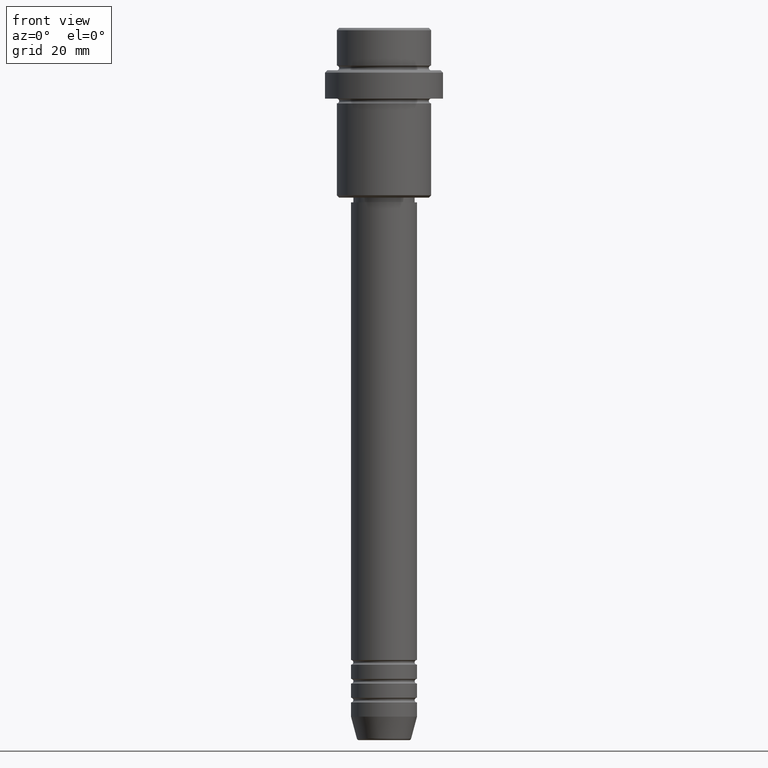
[diagram: clean part render]
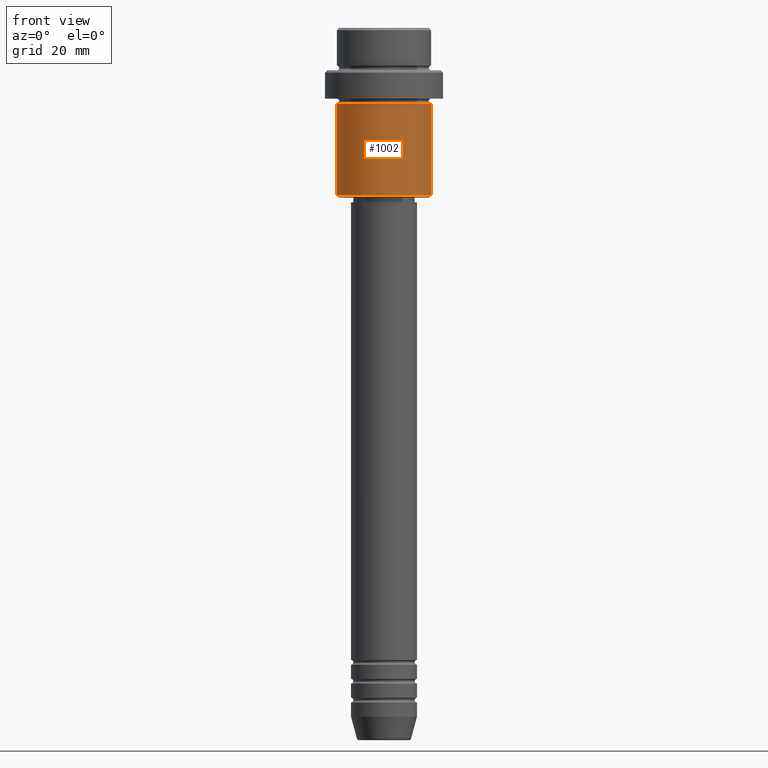
[diagram: same view with one face highlighted and labeled with its STEP entity id]
A machine part, front view. The second image highlights one B-rep face of the part: STEP entity #1002.
In plain terms, the highlighted cylindrical surface (partial cylindrical patch) has radius 10 mm, axis along (-0, -0, 1).
Its self-contained STEP definition (entity closure, byte-faithful):
#49 = LINE ( 'NONE', #816, #1339 ) ;
#78 = VERTEX_POINT ( 'NONE', #785 ) ;
#130 = CARTESIAN_POINT ( 'NONE',  ( 10.00000000000000000, 0.000000000000000000, -35.49999999999995737 ) ) ;
#138 = FACE_OUTER_BOUND ( 'NONE', #333, .T. ) ;
#195 = DIRECTION ( 'NONE',  ( -0.000000000000000000, -0.000000000000000000, 1.000000000000000000 ) ) ;
#276 = LINE ( 'NONE', #692, #716 ) ;
#333 = EDGE_LOOP ( 'NONE', ( #485, #599, #435, #347 ) ) ;
#347 = ORIENTED_EDGE ( 'NONE', *, *, #1142, .F. ) ;
#371 = DIRECTION ( 'NONE',  ( 1.000000000000000000, 0.000000000000000000, 0.000000000000000000 ) ) ;
#385 = CYLINDRICAL_SURFACE ( 'NONE', #540, 10.00000000000000000 ) ;
#421 = AXIS2_PLACEMENT_3D ( 'NONE', #1402, #1408, #943 ) ;
#435 = ORIENTED_EDGE ( 'NONE', *, *, #614, .T. ) ;
#468 = CIRCLE ( 'NONE', #1029, 10.00000000000000000 ) ;
#479 = DIRECTION ( 'NONE',  ( -0.000000000000000000, -0.000000000000000000, 1.000000000000000000 ) ) ;
#485 = ORIENTED_EDGE ( 'NONE', *, *, #980, .F. ) ;
#540 = AXIS2_PLACEMENT_3D ( 'NONE', #826, #479, #371 ) ;
#591 = DIRECTION ( 'NONE',  ( -0.000000000000000000, -0.000000000000000000, 1.000000000000000000 ) ) ;
#599 = ORIENTED_EDGE ( 'NONE', *, *, #731, .T. ) ;
#600 = DIRECTION ( 'NONE',  ( -0.000000000000000000, -0.000000000000000000, 1.000000000000000000 ) ) ;
#614 = EDGE_CURVE ( 'NONE', #1357, #78, #49, .T. ) ;
#623 = CARTESIAN_POINT ( 'NONE',  ( -10.00000000000000000, 1.224646799147353256E-15, -35.49999999999995737 ) ) ;
#633 = DIRECTION ( 'NONE',  ( -1.000000000000000000, 0.000000000000000000, 0.000000000000000000 ) ) ;
#692 = CARTESIAN_POINT ( 'NONE',  ( -10.00000000000000000, 1.224646799147353256E-15, 0.000000000000000000 ) ) ;
#716 = VECTOR ( 'NONE', #600, 1000.000000000000000 ) ;
#731 = EDGE_CURVE ( 'NONE', #1401, #1357, #468, .T. ) ;
#785 = CARTESIAN_POINT ( 'NONE',  ( 10.00000000000000000, 0.000000000000000000, -16.00000000000000000 ) ) ;
#816 = CARTESIAN_POINT ( 'NONE',  ( 10.00000000000000000, 0.000000000000000000, 0.000000000000000000 ) ) ;
#826 = CARTESIAN_POINT ( 'NONE',  ( 0.000000000000000000, 0.000000000000000000, 0.000000000000000000 ) ) ;
#856 = CARTESIAN_POINT ( 'NONE',  ( -10.00000000000000000, 1.224646799147353256E-15, -16.00000000000000000 ) ) ;
#943 = DIRECTION ( 'NONE',  ( 1.000000000000000000, 0.000000000000000000, 0.000000000000000000 ) ) ;
#980 = EDGE_CURVE ( 'NONE', #1401, #1145, #276, .T. ) ;
#984 = CIRCLE ( 'NONE', #421, 10.00000000000000000 ) ;
#1002 = ADVANCED_FACE ( 'NONE', ( #138 ), #385, .T. ) ;
#1029 = AXIS2_PLACEMENT_3D ( 'NONE', #1184, #195, #633 ) ;
#1142 = EDGE_CURVE ( 'NONE', #1145, #78, #984, .T. ) ;
#1145 = VERTEX_POINT ( 'NONE', #856 ) ;
#1184 = CARTESIAN_POINT ( 'NONE',  ( 0.000000000000000000, 0.000000000000000000, -35.49999999999995737 ) ) ;
#1339 = VECTOR ( 'NONE', #591, 1000.000000000000000 ) ;
#1357 = VERTEX_POINT ( 'NONE', #130 ) ;
#1401 = VERTEX_POINT ( 'NONE', #623 ) ;
#1402 = CARTESIAN_POINT ( 'NONE',  ( 0.000000000000000000, 0.000000000000000000, -16.00000000000000000 ) ) ;
#1408 = DIRECTION ( 'NONE',  ( -0.000000000000000000, -0.000000000000000000, 1.000000000000000000 ) ) ;